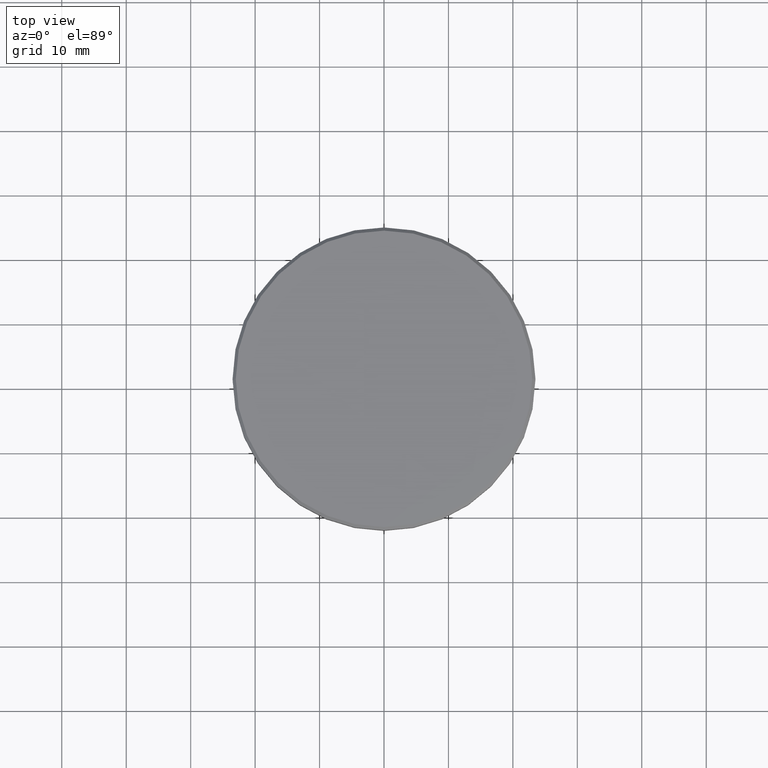
[diagram: clean part render]
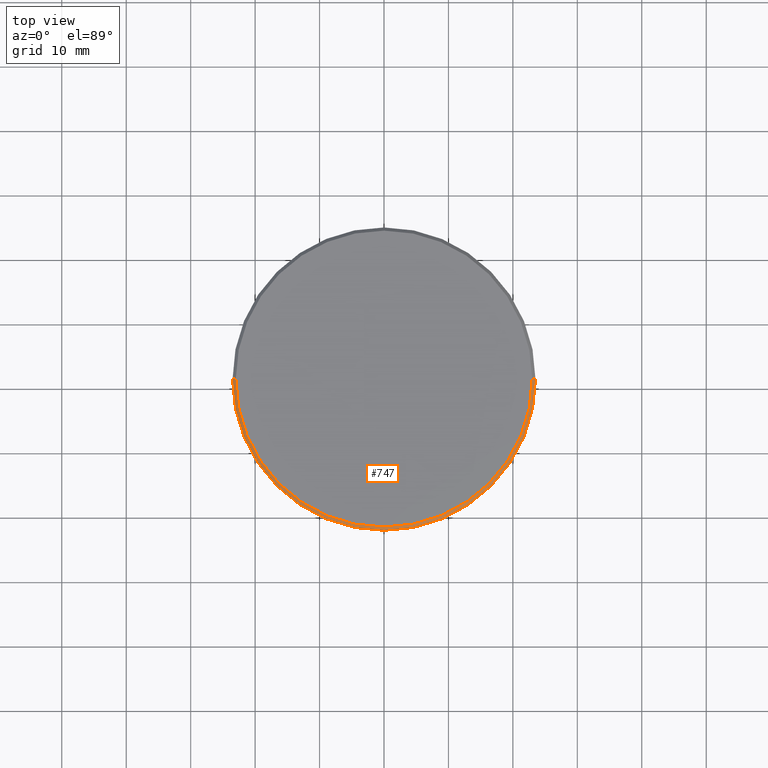
[diagram: same view with one face highlighted and labeled with its STEP entity id]
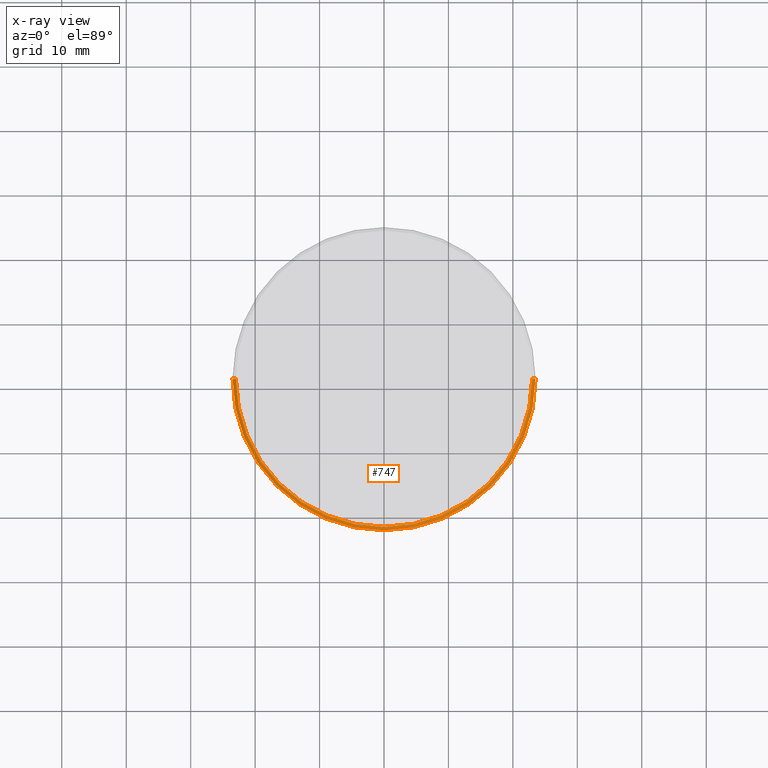
[diagram: x-ray of the same camera — body ghosted, the highlighted face saturated]
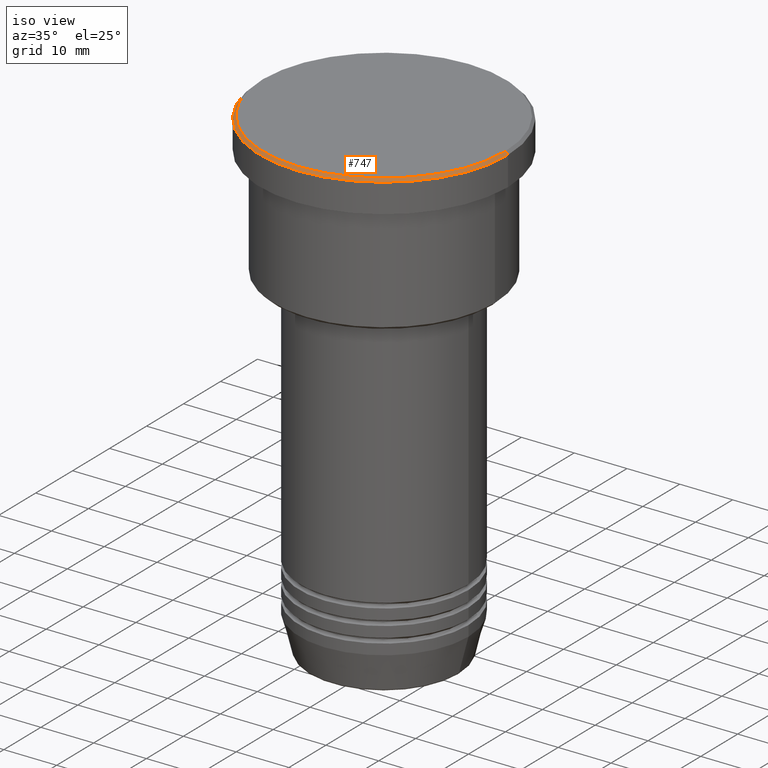
[diagram: same view with one face highlighted and labeled with its STEP entity id]
A machine part, top view. The second image highlights one B-rep face of the part: STEP entity #747.
The next image is the same camera in x-ray: the body ghosted, the highlighted face saturated — about 0% of this face is hidden behind the body in this view.
A second angle (iso view) of the same face is appended — the face is thin or edge-on in the first view.
In plain terms, the highlighted conical surface has half-angle 45 deg.
Its self-contained STEP definition (entity closure, byte-faithful):
#46 = LINE ( 'NONE', #393, #599 ) ;
#143 = CARTESIAN_POINT ( 'NONE',  ( 0.000000000000000000, 0.000000000000000000, 0.000000000000000000 ) ) ;
#160 = ORIENTED_EDGE ( 'NONE', *, *, #546, .F. ) ;
#215 = DIRECTION ( 'NONE',  ( 1.000000000000000000, 0.000000000000000000, 0.000000000000000000 ) ) ;
#218 = ORIENTED_EDGE ( 'NONE', *, *, #253, .F. ) ;
#253 = EDGE_CURVE ( 'NONE', #910, #1043, #46, .T. ) ;
#309 = DIRECTION ( 'NONE',  ( -0.000000000000000000, -0.000000000000000000, 1.000000000000000000 ) ) ;
#346 = DIRECTION ( 'NONE',  ( 0.000000000000000000, 0.000000000000000000, -1.000000000000000000 ) ) ;
#348 = VERTEX_POINT ( 'NONE', #807 ) ;
#353 = ORIENTED_EDGE ( 'NONE', *, *, #433, .F. ) ;
#393 = CARTESIAN_POINT ( 'NONE',  ( 23.00000000000003908, 2.816687638038917085E-15, 0.000000000000000000 ) ) ;
#408 = CARTESIAN_POINT ( 'NONE',  ( -23.00000000000003908, 0.000000000000000000, 0.000000000000000000 ) ) ;
#433 = EDGE_CURVE ( 'NONE', #1043, #348, #632, .T. ) ;
#442 = CARTESIAN_POINT ( 'NONE',  ( 0.000000000000000000, 0.000000000000000000, -0.4999999999999865663 ) ) ;
#501 = DIRECTION ( 'NONE',  ( -1.000000000000000000, 0.000000000000000000, 0.000000000000000000 ) ) ;
#523 = CIRCLE ( 'NONE', #1074, 23.00000000000003908 ) ;
#546 = EDGE_CURVE ( 'NONE', #1105, #910, #523, .T. ) ;
#599 = VECTOR ( 'NONE', #1121, 1000.000000000000114 ) ;
#603 = DIRECTION ( 'NONE',  ( -0.7071067811865302533, 0.000000000000000000, -0.7071067811865647812 ) ) ;
#632 = CIRCLE ( 'NONE', #1014, 23.50000000000000000 ) ;
#645 = CARTESIAN_POINT ( 'NONE',  ( 23.50000000000000000, 0.000000000000000000, -0.4999999999999865663 ) ) ;
#672 = CARTESIAN_POINT ( 'NONE',  ( 0.000000000000000000, 0.000000000000000000, 0.000000000000000000 ) ) ;
#709 = CONICAL_SURFACE ( 'NONE', #875, 23.00000000000003908, 0.7853981633974239651 ) ;
#715 = VECTOR ( 'NONE', #603, 1000.000000000000114 ) ;
#716 = EDGE_LOOP ( 'NONE', ( #218, #160, #1110, #353 ) ) ;
#747 = ADVANCED_FACE ( 'NONE', ( #1042 ), #709, .T. ) ;
#767 = CARTESIAN_POINT ( 'NONE',  ( -23.00000000000003908, 0.000000000000000000, 0.000000000000000000 ) ) ;
#782 = LINE ( 'NONE', #408, #715 ) ;
#807 = CARTESIAN_POINT ( 'NONE',  ( -23.50000000000000000, 2.877919977996280320E-15, -0.4999999999999865663 ) ) ;
#875 = AXIS2_PLACEMENT_3D ( 'NONE', #143, #346, #501 ) ;
#910 = VERTEX_POINT ( 'NONE', #1093 ) ;
#912 = DIRECTION ( 'NONE',  ( 0.000000000000000000, 0.000000000000000000, -1.000000000000000000 ) ) ;
#1014 = AXIS2_PLACEMENT_3D ( 'NONE', #442, #912, #1170 ) ;
#1042 = FACE_OUTER_BOUND ( 'NONE', #716, .T. ) ;
#1043 = VERTEX_POINT ( 'NONE', #645 ) ;
#1074 = AXIS2_PLACEMENT_3D ( 'NONE', #672, #309, #215 ) ;
#1093 = CARTESIAN_POINT ( 'NONE',  ( 23.00000000000003908, 2.847303808017598505E-15, 0.000000000000000000 ) ) ;
#1105 = VERTEX_POINT ( 'NONE', #767 ) ;
#1110 = ORIENTED_EDGE ( 'NONE', *, *, #1122, .T. ) ;
#1121 = DIRECTION ( 'NONE',  ( 0.7071067811865302533, 8.659560562354722084E-17, -0.7071067811865647812 ) ) ;
#1122 = EDGE_CURVE ( 'NONE', #1105, #348, #782, .T. ) ;
#1170 = DIRECTION ( 'NONE',  ( 1.000000000000000000, 0.000000000000000000, 0.000000000000000000 ) ) ;